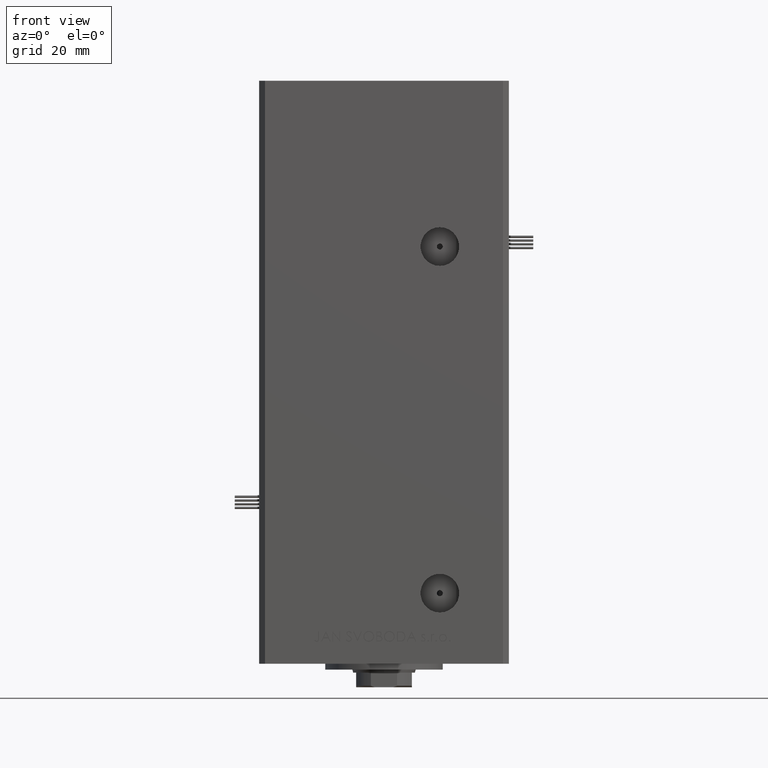
[diagram: clean part render]
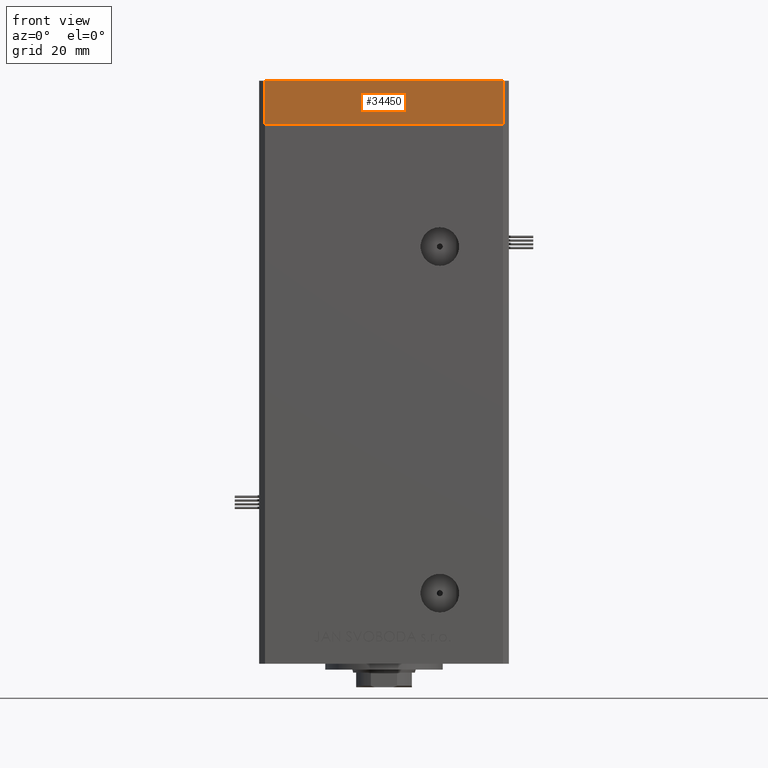
[diagram: same view with one face highlighted and labeled with its STEP entity id]
A machine part, front view. The second image highlights one B-rep face of the part: STEP entity #34450.
In plain terms, the highlighted planar face has unit normal (0, -1, 0).
Its self-contained STEP definition (entity closure, byte-faithful):
#1218 = CARTESIAN_POINT ( 'NONE',  ( 40.50000000000000000, -37.50000000000000711, -15.00000000000000000 ) ) ;
#1619 = VERTEX_POINT ( 'NONE', #46552 ) ;
#1735 = DIRECTION ( 'NONE',  ( 1.000000000000000000, 1.713307136767217096E-16, 0.000000000000000000 ) ) ;
#3774 = VECTOR ( 'NONE', #47296, 1000.000000000000000 ) ;
#5208 = DIRECTION ( 'NONE',  ( 1.713307136767217096E-16, -1.000000000000000000, 0.000000000000000000 ) ) ;
#5711 = DIRECTION ( 'NONE',  ( 0.000000000000000000, 0.000000000000000000, 1.000000000000000000 ) ) ;
#5908 = DIRECTION ( 'NONE',  ( 1.000000000000000000, 1.713307136767217096E-16, 0.000000000000000000 ) ) ;
#10433 = LINE ( 'NONE', #21900, #52423 ) ;
#11065 = VERTEX_POINT ( 'NONE', #51457 ) ;
#12598 = VERTEX_POINT ( 'NONE', #16304 ) ;
#13790 = EDGE_CURVE ( 'NONE', #1619, #11065, #34638, .T. ) ;
#16304 = CARTESIAN_POINT ( 'NONE',  ( -40.49999999999999289, -37.50000000000002132, -15.00000000000000000 ) ) ;
#17667 = ORIENTED_EDGE ( 'NONE', *, *, #33297, .F. ) ;
#19264 = EDGE_CURVE ( 'NONE', #22385, #11065, #41961, .T. ) ;
#20648 = ORIENTED_EDGE ( 'NONE', *, *, #37258, .T. ) ;
#21900 = CARTESIAN_POINT ( 'NONE',  ( -40.49999999999999289, -37.50000000000002132, -15.00000000000000000 ) ) ;
#22385 = VERTEX_POINT ( 'NONE', #1218 ) ;
#22925 = CARTESIAN_POINT ( 'NONE',  ( -40.49999999999999289, -37.50000000000002132, 0.000000000000000000 ) ) ;
#24298 = CARTESIAN_POINT ( 'NONE',  ( -40.49999999999999289, -37.50000000000002132, -15.00000000000000000 ) ) ;
#26636 = ORIENTED_EDGE ( 'NONE', *, *, #19264, .T. ) ;
#27243 = ORIENTED_EDGE ( 'NONE', *, *, #13790, .F. ) ;
#29994 = CARTESIAN_POINT ( 'NONE',  ( -40.49999999999999289, -37.50000000000002132, -15.00000000000000000 ) ) ;
#33297 = EDGE_CURVE ( 'NONE', #12598, #1619, #39299, .T. ) ;
#34450 = ADVANCED_FACE ( 'NONE', ( #38246 ), #41718, .T. ) ;
#34638 = LINE ( 'NONE', #22925, #35996 ) ;
#35996 = VECTOR ( 'NONE', #51686, 1000.000000000000000 ) ;
#37258 = EDGE_CURVE ( 'NONE', #12598, #22385, #10433, .T. ) ;
#38246 = FACE_OUTER_BOUND ( 'NONE', #52645, .T. ) ;
#39299 = LINE ( 'NONE', #24298, #3774 ) ;
#41718 = PLANE ( 'NONE',  #52307 ) ;
#41961 = LINE ( 'NONE', #45447, #42510 ) ;
#42510 = VECTOR ( 'NONE', #5711, 1000.000000000000000 ) ;
#45447 = CARTESIAN_POINT ( 'NONE',  ( 40.50000000000000000, -37.50000000000000711, -15.00000000000000000 ) ) ;
#46552 = CARTESIAN_POINT ( 'NONE',  ( -40.49999999999999289, -37.50000000000002132, 0.000000000000000000 ) ) ;
#47296 = DIRECTION ( 'NONE',  ( 0.000000000000000000, 0.000000000000000000, 1.000000000000000000 ) ) ;
#51457 = CARTESIAN_POINT ( 'NONE',  ( 40.50000000000000000, -37.50000000000000711, 0.000000000000000000 ) ) ;
#51686 = DIRECTION ( 'NONE',  ( 1.000000000000000000, 1.713307136767217096E-16, 0.000000000000000000 ) ) ;
#52307 = AXIS2_PLACEMENT_3D ( 'NONE', #29994, #5208, #1735 ) ;
#52423 = VECTOR ( 'NONE', #5908, 1000.000000000000000 ) ;
#52645 = EDGE_LOOP ( 'NONE', ( #27243, #17667, #20648, #26636 ) ) ;